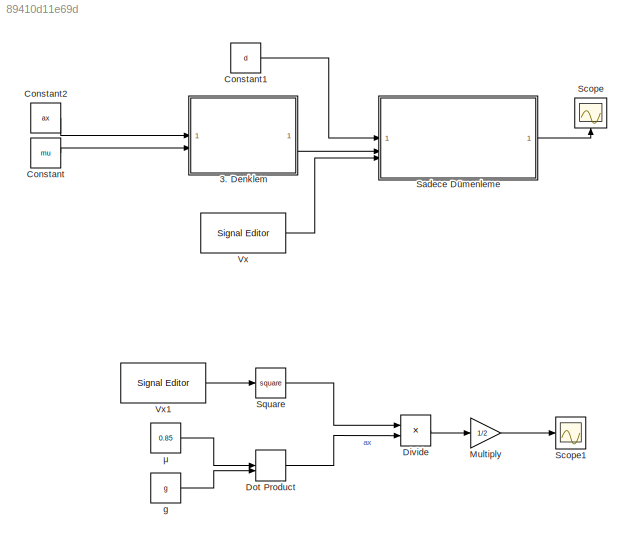
MODEL slx_89410d11e69d
KIND model
CONFIG AbsTol = auto
CONFIG EnableMultiTasking = off
CONFIG FixedStep = auto
CONFIG MaxStep = auto
CONFIG MinStep = auto
CONFIG RelTol = 1e-3
CONFIG SampleTimeConstraint = Unconstrained
CONFIG SolverName = VariableStepAuto
CONFIG StartTime = 0.0
CONFIG StopTime = 5
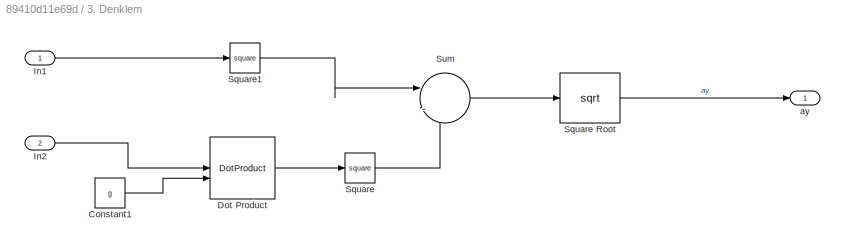
BLOCK [SubSystem] 3. Denklem
BLOCK [Constant] 3. Denklem/Constant1
  Value = g
BLOCK [DotProduct] 3. Denklem/Dot Product
  OutDataTypeStr = Inherit: Inherit via internal rule
BLOCK [Inport] 3. Denklem/In1
BLOCK [Inport] 3. Denklem/In2
  Port = 2
BLOCK [Math] 3. Denklem/Square
  Operator = square
BLOCK [Sqrt] 3. Denklem/Square Root
BLOCK [Math] 3. Denklem/Square1
  Operator = square
BLOCK [Sum] 3. Denklem/Sum
  Inputs = |-+
BLOCK [Outport] 3. Denklem/ay
BLOCK [Constant] Constant
  Value = mu
BLOCK [Constant] Constant1
  Value = d
BLOCK [Constant] Constant2
  Value = ax
BLOCK [Product] Divide
  Inputs = */
BLOCK [DotProduct] Dot Product
  OutDataTypeStr = Inherit: Inherit via internal rule
BLOCK [Gain] Multiply
  Gain = 1/2
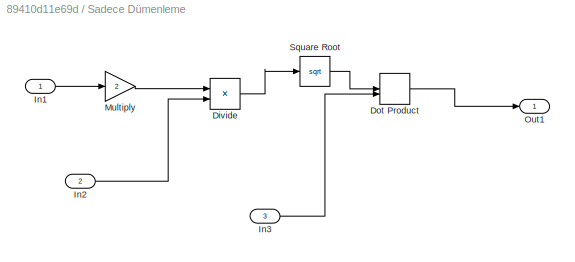
BLOCK [SubSystem] Sadece Dümenleme
BLOCK [Product] Sadece Dümenleme/Divide
  Inputs = */
BLOCK [DotProduct] Sadece Dümenleme/Dot Product
  OutDataTypeStr = Inherit: Inherit via internal rule
BLOCK [Inport] Sadece Dümenleme/In1
BLOCK [Inport] Sadece Dümenleme/In2
  Port = 2
BLOCK [Inport] Sadece Dümenleme/In3
  Port = 3
BLOCK [Gain] Sadece Dümenleme/Multiply
  Gain = 2
BLOCK [Outport] Sadece Dümenleme/Out1
BLOCK [Sqrt] Sadece Dümenleme/Square Root
BLOCK [Scope] Scope
  ActiveDisplayYMaximum = 77.719593000904254
  ActiveDisplayYMinimum = -8.0050372802259488
  ContainerLayout = {"WindowBounds":[-8,-5,1550,829]}
  Floating = off
  GraphicalSettings = {"Style":{"BackgroundColor":[0.12941176470588237,0.12941176470588237,0.12941176470588237],"AxesColor":[0.07058823529411765,0.07058823529411765,0.07058823529411765],"LabelsColor":[0.8509803921568627,0.8509803921568627,0.8509803921568627],"PreserveColors":false,"Visible":[true],"LineStyle":["-"],"LineWidth":[1.5],"BarWidth":[0.9],"LineColor":["auto"],"LineFaceAlpha":[1],"LineEdgeAlpha":[1],"Marker":...<+1991ch>
  MultipleDisplayCache = [{"MaxYLimMag":34.040253199219883,"MaxYLimReal":77.719593000904254,"MinYLimMag":0,"MinYLimReal":-8.0050372802259488,"PlotAsMagnitudePhase":false,"ShowGrid":true,"ShowLegend":false,"Title":"%<SignalLabel>","YLabel":""}]
  NameLocation = right
  NumInputPorts = 1
  ScopeFrameLocation = container
  Visible = on
  WasSavedAsWebScope = on
  WindowPosition = [-8.000000,40.000000,1550.000000,829.000000,]
BLOCK [Scope] Scope1
  ActiveDisplayYMaximum = 238.914373088685
  ActiveDisplayYMinimum = -26.546041454298319
  DataLoggingVariableName = ScopeData1
  Floating = off
  GraphicalSettings = {"Style":{"BackgroundColor":[0.12941176470588237,0.12941176470588237,0.12941176470588237],"AxesColor":[0.07058823529411765,0.07058823529411765,0.07058823529411765],"LabelsColor":[0.8509803921568627,0.8509803921568627,0.8509803921568627],"PreserveColors":false,"Visible":[true],"LineStyle":["-"],"LineWidth":[1.5],"BarWidth":[0.9],"LineColor":["auto"],"LineFaceAlpha":[1],"LineEdgeAlpha":[1],"Marker":...<+1974ch>
  MultipleDisplayCache = [{"MaxYLimMag":238.914373088685,"MaxYLimReal":238.914373088685,"MinYLimMag":0,"MinYLimReal":-26.546041454298319,"PlotAsMagnitudePhase":false,"ShowGrid":true,"ShowLegend":false,"Title":"%<SignalLabel>","YLabel":""}]
  NumInputPorts = 1
  ScopeFrameLocation = window
  WasSavedAsWebScope = on
  WindowPosition = [1.000000,49.000000,1536.000000,792.000000,]
BLOCK [Math] Square
  Operator = square
BLOCK [Reference] Vx  REF=SignalEditorBlockLib/Signal Editor
  LibrarySourceBlock = simulink/Sources/Signal Editor
  SourceBlock = SignalEditorBlockLib/Signal Editor
  SourceType = SignalEditor
  UserDataPersistent = on
BLOCK [Reference] Vx1  REF=SignalEditorBlockLib/Signal Editor
  LibrarySourceBlock = simulink/Sources/Signal Editor
  SourceBlock = SignalEditorBlockLib/Signal Editor
  SourceType = SignalEditor
  UserDataPersistent = on
BLOCK [Constant] g
  Value = g
BLOCK [Constant] μ
  Value = 0.85
LINE 3. Denklem/Constant1:1 -> 3. Denklem/Dot Product:2
LINE 3. Denklem/Dot Product:1 -> 3. Denklem/Square:1
LINE 3. Denklem/In1:1 -> 3. Denklem/Square1:1
LINE 3. Denklem/In2:1 -> 3. Denklem/Dot Product:1
LINE 3. Denklem/Square Root:1 -> 3. Denklem/ay:1
LINE 3. Denklem/Square1:1 -> 3. Denklem/Sum:1
LINE 3. Denklem/Square:1 -> 3. Denklem/Sum:2
LINE 3. Denklem/Sum:1 -> 3. Denklem/Square Root:1
LINE 3. Denklem:1 -> Sadece Dümenleme:2
LINE Constant1:1 -> Sadece Dümenleme:1
LINE Constant2:1 -> 3. Denklem:1
LINE Constant:1 -> 3. Denklem:2
LINE Divide:1 -> Multiply:1
LINE Dot Product:1 -> Divide:2
LINE Multiply:1 -> Scope1:1
LINE Sadece Dümenleme/Divide:1 -> Sadece Dümenleme/Square Root:1
LINE Sadece Dümenleme/Dot Product:1 -> Sadece Dümenleme/Out1:1
LINE Sadece Dümenleme/In1:1 -> Sadece Dümenleme/Multiply:1
LINE Sadece Dümenleme/In2:1 -> Sadece Dümenleme/Divide:2
LINE Sadece Dümenleme/In3:1 -> Sadece Dümenleme/Dot Product:2
LINE Sadece Dümenleme/Multiply:1 -> Sadece Dümenleme/Divide:1
LINE Sadece Dümenleme/Square Root:1 -> Sadece Dümenleme/Dot Product:1
LINE Sadece Dümenleme:1 -> Scope:1
LINE Square:1 -> Divide:1
LINE Vx1:1 -> Square:1
LINE Vx:1 -> Sadece Dümenleme:3
LINE g:1 -> Dot Product:2
LINE μ:1 -> Dot Product:1
